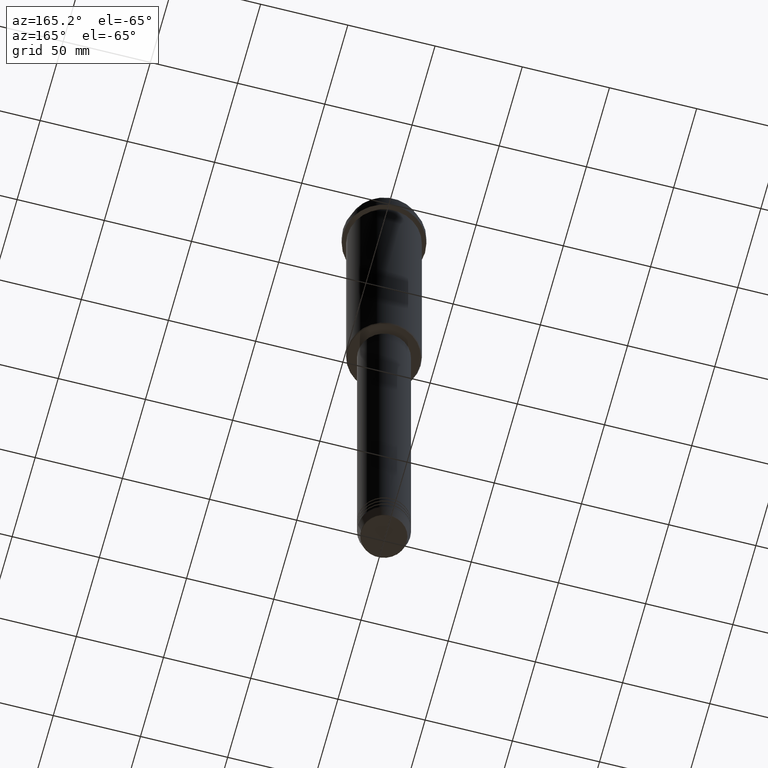
[diagram: clean part render]
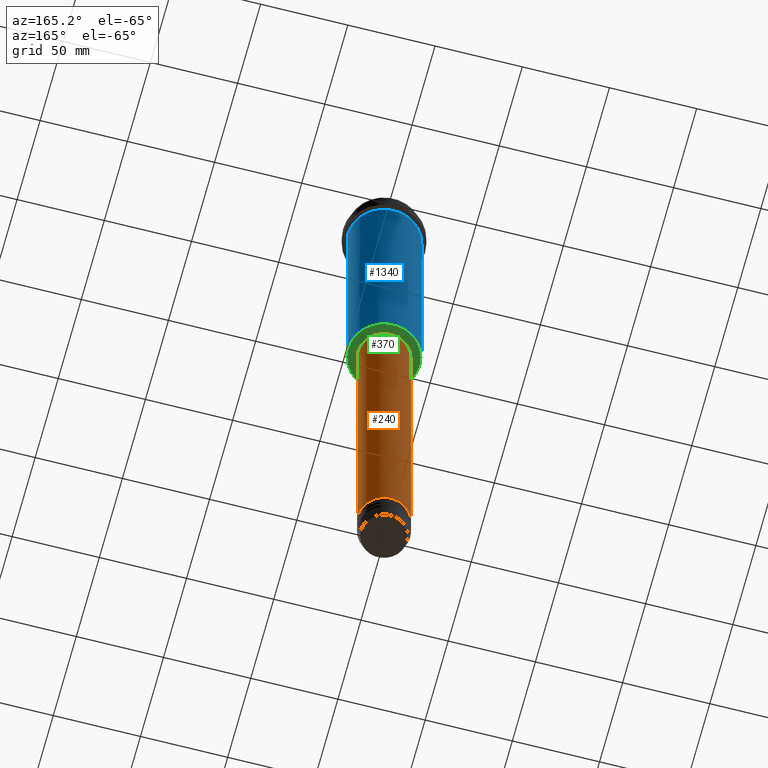
[diagram: same view with three faces highlighted in distinct colors, each labeled with its STEP entity id]
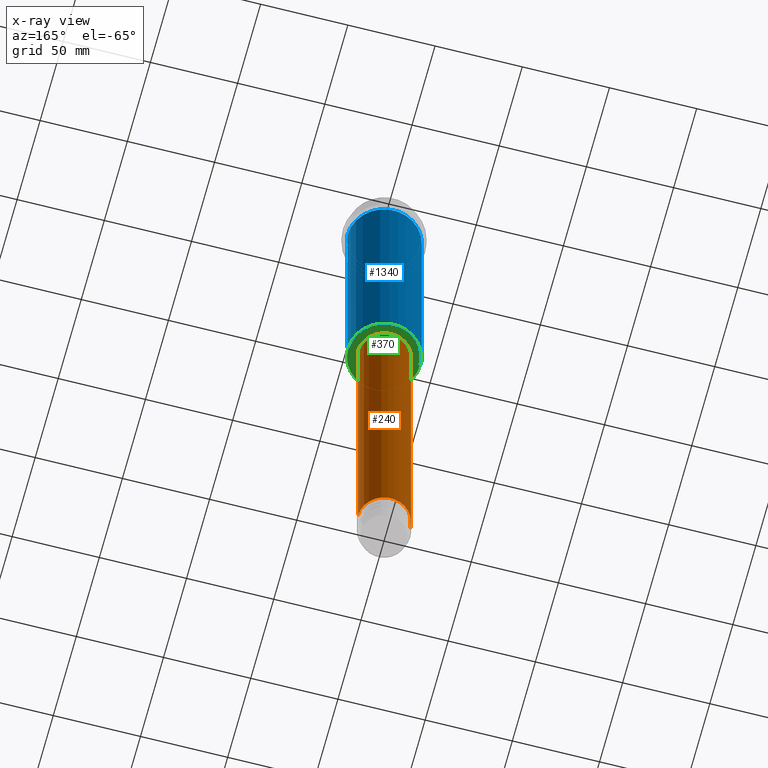
[diagram: x-ray of the same camera — body ghosted, the three highlighted faces saturated]
A machine part, auxiliary view with three faces highlighted in distinct colors.
The next image is the same camera in x-ray (body ghosted, the three faces saturated) — at least one of them is partly hidden behind the body in this view.
Their STEP definitions:

[orange] entity #240 — the highlighted cylindrical surface (edge-blend (fillet) strip) has radius 15 mm, axis along (-0, -0, 1).
#31 = CARTESIAN_POINT ( 'NONE',  ( 0.000000000000000000, 0.000000000000000000, 0.000000000000000000 ) ) ;
#78 = VECTOR ( 'NONE', #532, 1000.000000000000000 ) ;
#87 = VERTEX_POINT ( 'NONE', #977 ) ;
#240 = ADVANCED_FACE ( 'NONE', ( #802 ), #507, .T. ) ;
#252 = CARTESIAN_POINT ( 'NONE',  ( 15.00000000000000000, 0.000000000000000000, -380.9999999999998295 ) ) ;
#258 = VERTEX_POINT ( 'NONE', #1253 ) ;
#268 = EDGE_LOOP ( 'NONE', ( #897, #1405, #1380, #776 ) ) ;
#314 = LINE ( 'NONE', #655, #78 ) ;
#338 = CIRCLE ( 'NONE', #859, 15.00000000000000000 ) ;
#466 = VECTOR ( 'NONE', #557, 1000.000000000000000 ) ;
#501 = EDGE_CURVE ( 'NONE', #258, #863, #314, .T. ) ;
#507 = CYLINDRICAL_SURFACE ( 'NONE', #777, 15.00000000000000000 ) ;
#532 = DIRECTION ( 'NONE',  ( -0.000000000000000000, -0.000000000000000000, 1.000000000000000000 ) ) ;
#557 = DIRECTION ( 'NONE',  ( -0.000000000000000000, -0.000000000000000000, 1.000000000000000000 ) ) ;
#582 = DIRECTION ( 'NONE',  ( -0.000000000000000000, -0.000000000000000000, 1.000000000000000000 ) ) ;
#622 = CARTESIAN_POINT ( 'NONE',  ( 0.000000000000000000, 0.000000000000000000, -165.9999999999998863 ) ) ;
#654 = VERTEX_POINT ( 'NONE', #252 ) ;
#655 = CARTESIAN_POINT ( 'NONE',  ( -15.00000000000000000, 1.836970198721029589E-15, 0.000000000000000000 ) ) ;
#765 = CARTESIAN_POINT ( 'NONE',  ( 15.00000000000000000, 0.000000000000000000, 0.000000000000000000 ) ) ;
#774 = CIRCLE ( 'NONE', #1113, 15.00000000000000000 ) ;
#776 = ORIENTED_EDGE ( 'NONE', *, *, #959, .F. ) ;
#777 = AXIS2_PLACEMENT_3D ( 'NONE', #31, #582, #1012 ) ;
#802 = FACE_OUTER_BOUND ( 'NONE', #268, .T. ) ;
#828 = DIRECTION ( 'NONE',  ( -0.000000000000000000, -0.000000000000000000, 1.000000000000000000 ) ) ;
#832 = EDGE_CURVE ( 'NONE', #654, #258, #774, .T. ) ;
#849 = CARTESIAN_POINT ( 'NONE',  ( -15.00000000000000000, 1.836970198721029589E-15, -165.9999999999998863 ) ) ;
#859 = AXIS2_PLACEMENT_3D ( 'NONE', #622, #1395, #1157 ) ;
#863 = VERTEX_POINT ( 'NONE', #849 ) ;
#897 = ORIENTED_EDGE ( 'NONE', *, *, #832, .T. ) ;
#956 = DIRECTION ( 'NONE',  ( 1.000000000000000000, 0.000000000000000000, 0.000000000000000000 ) ) ;
#959 = EDGE_CURVE ( 'NONE', #654, #87, #1184, .T. ) ;
#977 = CARTESIAN_POINT ( 'NONE',  ( 15.00000000000000000, 0.000000000000000000, -165.9999999999998863 ) ) ;
#1012 = DIRECTION ( 'NONE',  ( 1.000000000000000000, 0.000000000000000000, 0.000000000000000000 ) ) ;
#1113 = AXIS2_PLACEMENT_3D ( 'NONE', #1292, #828, #956 ) ;
#1157 = DIRECTION ( 'NONE',  ( 1.000000000000000000, 0.000000000000000000, 0.000000000000000000 ) ) ;
#1184 = LINE ( 'NONE', #765, #466 ) ;
#1235 = EDGE_CURVE ( 'NONE', #87, #863, #338, .T. ) ;
#1253 = CARTESIAN_POINT ( 'NONE',  ( -15.00000000000000000, 1.836970198721029589E-15, -380.9999999999998295 ) ) ;
#1292 = CARTESIAN_POINT ( 'NONE',  ( 0.000000000000000000, 0.000000000000000000, -380.9999999999998295 ) ) ;
#1380 = ORIENTED_EDGE ( 'NONE', *, *, #1235, .F. ) ;
#1395 = DIRECTION ( 'NONE',  ( -0.000000000000000000, -0.000000000000000000, 1.000000000000000000 ) ) ;
#1405 = ORIENTED_EDGE ( 'NONE', *, *, #501, .T. ) ;

[blue] entity #1340 — the highlighted cylindrical surface (partial cylindrical patch) has radius 21 mm, axis along (-0, -0, 1).
#5 = FACE_OUTER_BOUND ( 'NONE', #1320, .T. ) ;
#25 = EDGE_CURVE ( 'NONE', #815, #935, #797, .T. ) ;
#54 = ORIENTED_EDGE ( 'NONE', *, *, #1335, .T. ) ;
#220 = DIRECTION ( 'NONE',  ( -1.000000000000000000, 0.000000000000000000, 0.000000000000000000 ) ) ;
#291 = AXIS2_PLACEMENT_3D ( 'NONE', #888, #875, #321 ) ;
#321 = DIRECTION ( 'NONE',  ( 1.000000000000000000, 0.000000000000000000, 0.000000000000000000 ) ) ;
#337 = CYLINDRICAL_SURFACE ( 'NONE', #291, 20.99999999999999645 ) ;
#346 = DIRECTION ( 'NONE',  ( -0.000000000000000000, -0.000000000000000000, 1.000000000000000000 ) ) ;
#358 = VECTOR ( 'NONE', #346, 1000.000000000000000 ) ;
#368 = VERTEX_POINT ( 'NONE', #938 ) ;
#401 = AXIS2_PLACEMENT_3D ( 'NONE', #1401, #447, #220 ) ;
#436 = CARTESIAN_POINT ( 'NONE',  ( -20.99999999999999645, 2.571758278209441267E-15, -16.00000000000000355 ) ) ;
#447 = DIRECTION ( 'NONE',  ( -0.000000000000000000, -0.000000000000000000, 1.000000000000000000 ) ) ;
#543 = VERTEX_POINT ( 'NONE', #1344 ) ;
#645 = ORIENTED_EDGE ( 'NONE', *, *, #25, .F. ) ;
#769 = LINE ( 'NONE', #1198, #358 ) ;
#773 = DIRECTION ( 'NONE',  ( -0.000000000000000000, -0.000000000000000000, 1.000000000000000000 ) ) ;
#797 = CIRCLE ( 'NONE', #857, 20.99999999999999645 ) ;
#815 = VERTEX_POINT ( 'NONE', #937 ) ;
#830 = ORIENTED_EDGE ( 'NONE', *, *, #983, .T. ) ;
#857 = AXIS2_PLACEMENT_3D ( 'NONE', #1083, #773, #866 ) ;
#866 = DIRECTION ( 'NONE',  ( 1.000000000000000000, 0.000000000000000000, 0.000000000000000000 ) ) ;
#870 = DIRECTION ( 'NONE',  ( -0.000000000000000000, -0.000000000000000000, 1.000000000000000000 ) ) ;
#875 = DIRECTION ( 'NONE',  ( -0.000000000000000000, -0.000000000000000000, 1.000000000000000000 ) ) ;
#888 = CARTESIAN_POINT ( 'NONE',  ( 0.000000000000000000, 0.000000000000000000, 0.000000000000000000 ) ) ;
#935 = VERTEX_POINT ( 'NONE', #436 ) ;
#937 = CARTESIAN_POINT ( 'NONE',  ( 20.99999999999999645, 0.000000000000000000, -16.00000000000000355 ) ) ;
#938 = CARTESIAN_POINT ( 'NONE',  ( -20.99999999999999645, 2.571758278209441267E-15, -164.4999999999999147 ) ) ;
#980 = LINE ( 'NONE', #1087, #1249 ) ;
#983 = EDGE_CURVE ( 'NONE', #368, #935, #980, .T. ) ;
#999 = CIRCLE ( 'NONE', #401, 20.99999999999999645 ) ;
#1028 = ORIENTED_EDGE ( 'NONE', *, *, #1036, .F. ) ;
#1036 = EDGE_CURVE ( 'NONE', #543, #815, #769, .T. ) ;
#1083 = CARTESIAN_POINT ( 'NONE',  ( 0.000000000000000000, 0.000000000000000000, -16.00000000000000355 ) ) ;
#1087 = CARTESIAN_POINT ( 'NONE',  ( -20.99999999999999645, 2.571758278209441267E-15, 0.000000000000000000 ) ) ;
#1198 = CARTESIAN_POINT ( 'NONE',  ( 20.99999999999999645, 0.000000000000000000, 0.000000000000000000 ) ) ;
#1249 = VECTOR ( 'NONE', #870, 1000.000000000000000 ) ;
#1320 = EDGE_LOOP ( 'NONE', ( #54, #830, #645, #1028 ) ) ;
#1335 = EDGE_CURVE ( 'NONE', #543, #368, #999, .T. ) ;
#1340 = ADVANCED_FACE ( 'NONE', ( #5 ), #337, .T. ) ;
#1344 = CARTESIAN_POINT ( 'NONE',  ( 20.99999999999999645, 0.000000000000000000, -164.4999999999999147 ) ) ;
#1401 = CARTESIAN_POINT ( 'NONE',  ( 0.000000000000000000, 0.000000000000000000, -164.4999999999999147 ) ) ;

[green] entity #370 — the highlighted planar face has unit normal (0, 0, -1).
#16 = DIRECTION ( 'NONE',  ( 0.000000000000000000, 0.000000000000000000, -1.000000000000000000 ) ) ;
#96 = ORIENTED_EDGE ( 'NONE', *, *, #939, .T. ) ;
#104 = DIRECTION ( 'NONE',  ( 1.000000000000000000, 0.000000000000000000, 0.000000000000000000 ) ) ;
#115 = VERTEX_POINT ( 'NONE', #969 ) ;
#118 = CARTESIAN_POINT ( 'NONE',  ( 0.000000000000000000, 0.000000000000000000, -164.9999999999999716 ) ) ;
#152 = DIRECTION ( 'NONE',  ( -1.000000000000000000, 0.000000000000000000, -0.000000000000000000 ) ) ;
#212 = CARTESIAN_POINT ( 'NONE',  ( -20.49999999999996447, 2.541142108230755507E-15, -164.9999999999999716 ) ) ;
#243 = AXIS2_PLACEMENT_3D ( 'NONE', #330, #16, #1109 ) ;
#260 = CIRCLE ( 'NONE', #811, 14.49999999999999822 ) ;
#270 = CARTESIAN_POINT ( 'NONE',  ( 0.000000000000000000, 21.00000000000000000, -164.9999999999999716 ) ) ;
#330 = CARTESIAN_POINT ( 'NONE',  ( 0.000000000000000000, 0.000000000000000000, -164.9999999999999716 ) ) ;
#370 = ADVANCED_FACE ( 'NONE', ( #1379, #733 ), #1141, .T. ) ;
#384 = DIRECTION ( 'NONE',  ( 0.000000000000000000, 0.000000000000000000, -1.000000000000000000 ) ) ;
#508 = DIRECTION ( 'NONE',  ( 1.000000000000000000, 0.000000000000000000, 0.000000000000000000 ) ) ;
#512 = DIRECTION ( 'NONE',  ( -0.000000000000000000, -0.000000000000000000, 1.000000000000000000 ) ) ;
#528 = VERTEX_POINT ( 'NONE', #1003 ) ;
#534 = DIRECTION ( 'NONE',  ( -1.000000000000000000, 0.000000000000000000, 0.000000000000000000 ) ) ;
#562 = EDGE_LOOP ( 'NONE', ( #1144, #925 ) ) ;
#608 = EDGE_CURVE ( 'NONE', #1192, #115, #1296, .T. ) ;
#614 = CIRCLE ( 'NONE', #954, 20.49999999999996447 ) ;
#620 = ORIENTED_EDGE ( 'NONE', *, *, #1019, .T. ) ;
#653 = DIRECTION ( 'NONE',  ( -0.000000000000000000, -0.000000000000000000, 1.000000000000000000 ) ) ;
#733 = FACE_BOUND ( 'NONE', #562, .T. ) ;
#746 = EDGE_CURVE ( 'NONE', #115, #1192, #260, .T. ) ;
#811 = AXIS2_PLACEMENT_3D ( 'NONE', #930, #512, #508 ) ;
#827 = CARTESIAN_POINT ( 'NONE',  ( 14.49999999999999822, 0.000000000000000000, -164.9999999999999432 ) ) ;
#862 = CARTESIAN_POINT ( 'NONE',  ( 0.000000000000000000, 0.000000000000000000, -164.9999999999999432 ) ) ;
#877 = DIRECTION ( 'NONE',  ( 0.000000000000000000, 0.000000000000000000, -1.000000000000000000 ) ) ;
#880 = AXIS2_PLACEMENT_3D ( 'NONE', #862, #653, #104 ) ;
#922 = EDGE_LOOP ( 'NONE', ( #96, #620 ) ) ;
#925 = ORIENTED_EDGE ( 'NONE', *, *, #746, .T. ) ;
#930 = CARTESIAN_POINT ( 'NONE',  ( 0.000000000000000000, 0.000000000000000000, -164.9999999999999432 ) ) ;
#939 = EDGE_CURVE ( 'NONE', #528, #1374, #614, .T. ) ;
#954 = AXIS2_PLACEMENT_3D ( 'NONE', #118, #877, #534 ) ;
#969 = CARTESIAN_POINT ( 'NONE',  ( -14.49999999999999822, 1.775737858763662015E-15, -164.9999999999999432 ) ) ;
#1003 = CARTESIAN_POINT ( 'NONE',  ( 20.49999999999996447, 0.000000000000000000, -164.9999999999999716 ) ) ;
#1019 = EDGE_CURVE ( 'NONE', #1374, #528, #1064, .T. ) ;
#1064 = CIRCLE ( 'NONE', #243, 20.49999999999996447 ) ;
#1109 = DIRECTION ( 'NONE',  ( -1.000000000000000000, 0.000000000000000000, 0.000000000000000000 ) ) ;
#1141 = PLANE ( 'NONE',  #1174 ) ;
#1144 = ORIENTED_EDGE ( 'NONE', *, *, #608, .T. ) ;
#1174 = AXIS2_PLACEMENT_3D ( 'NONE', #270, #384, #152 ) ;
#1192 = VERTEX_POINT ( 'NONE', #827 ) ;
#1296 = CIRCLE ( 'NONE', #880, 14.49999999999999822 ) ;
#1374 = VERTEX_POINT ( 'NONE', #212 ) ;
#1379 = FACE_OUTER_BOUND ( 'NONE', #922, .T. ) ;